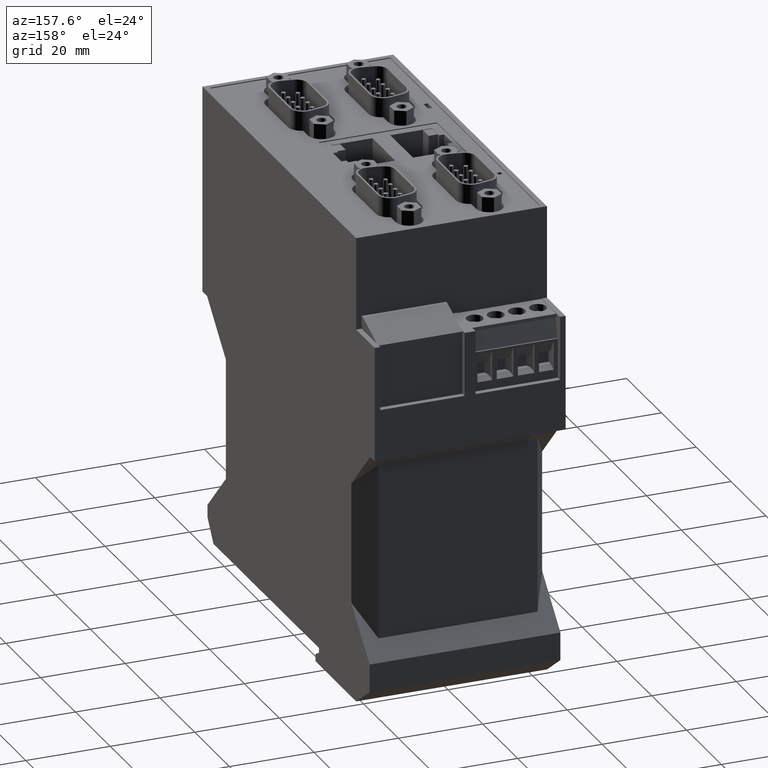
[diagram: clean part render]
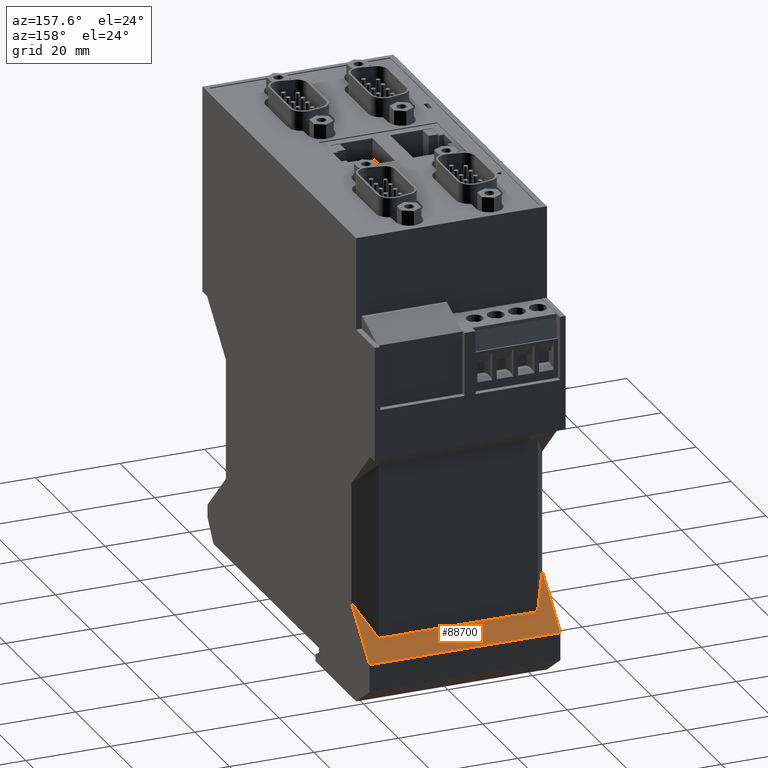
[diagram: same view with one face highlighted and labeled with its STEP entity id]
A machine part, auxiliary view. The second image highlights one B-rep face of the part: STEP entity #88700.
In plain terms, the highlighted planar face has unit normal (-0, -0.7071, -0.7071).
Its self-contained STEP definition (entity closure, byte-faithful):
#600=CARTESIAN_POINT('',(29.0500000000947,7.99999999999599,-11.3));
#610=VERTEX_POINT('',#600);
#640=CARTESIAN_POINT('',(24.,13.0500000000897,-11.3));
#650=DIRECTION('',(-0.707106781186613,0.707106781186482,0.));
#660=VECTOR('',#650,1.);
#670=LINE('',#640,#660);
#680=CARTESIAN_POINT('',(18.55000000009,18.4999999999987,-11.3));
#690=VERTEX_POINT('',#680);
#700=EDGE_CURVE('',#610,#690,#670,.T.);
#71020=CARTESIAN_POINT('',(25.0500000000942,11.9999999999957,
30.1472232502123));
#71030=VERTEX_POINT('',#71020);
#71060=CARTESIAN_POINT('',(24.,13.0500000000897,30.7534410329158));
#71070=DIRECTION('',(-0.65465367070803,0.654653670707909,
0.377964473009255));
#71080=VECTOR('',#71070,1.);
#71090=LINE('',#71060,#71080);
#71100=CARTESIAN_POINT('',(18.5499999999986,18.5000000000902,33.9));
#71110=VERTEX_POINT('',#71100);
#71120=EDGE_CURVE('',#71030,#71110,#71090,.T.);
#73880=CARTESIAN_POINT('',(24.,13.0500000000897,33.9));
#73890=DIRECTION('',(-0.707106781186613,0.707106781186482,0.));
#73900=VECTOR('',#73890,1.);
#73910=LINE('',#73880,#73900);
#73920=CARTESIAN_POINT('',(29.0500000000947,7.99999999999599,33.9));
#73930=VERTEX_POINT('',#73920);
#73940=EDGE_CURVE('',#73930,#71110,#73910,.T.);
#86190=CARTESIAN_POINT('',(25.0500000000874,12.0000000000026,
-7.54722325026897));
#86200=VERTEX_POINT('',#86190);
#86230=CARTESIAN_POINT('',(25.0500000000857,12.0000000000043,-11.3));
#86240=DIRECTION('',(-4.52800000000003E-13,4.52799999999919E-13,-1.));
#86250=VECTOR('',#86240,1.);
#86260=LINE('',#86230,#86250);
#86270=EDGE_CURVE('',#71030,#86200,#86260,.T.);
#86460=CARTESIAN_POINT('',(24.,13.0500000000897,-8.15344103296852));
#86470=DIRECTION('',(-0.654653670708029,0.654653670707908,
-0.377964473009258));
#86480=VECTOR('',#86470,1.);
#86490=LINE('',#86460,#86480);
#86500=EDGE_CURVE('',#86200,#690,#86490,.T.);
#88410=CARTESIAN_POINT('',(29.0500000000947,7.99999999999599,-11.3));
#88420=DIRECTION('',(0.,0.,1.));
#88430=VECTOR('',#88420,1.);
#88440=LINE('',#88410,#88430);
#88450=EDGE_CURVE('',#610,#73930,#88440,.T.);
#88570=CARTESIAN_POINT('',(13.7750000000867,23.2750000000012,0.));
#88580=DIRECTION('',(-0.707106781186482,-0.707106781186613,-0.));
#88590=DIRECTION('',(-0.707106781186613,0.707106781186482,0.));
#88600=AXIS2_PLACEMENT_3D('',#88570,#88580,#88590);
#88610=PLANE('',#88600);
#88620=ORIENTED_EDGE('',*,*,#86500,.F.);
#88630=ORIENTED_EDGE('',*,*,#700,.T.);
#88640=ORIENTED_EDGE('',*,*,#88450,.F.);
#88650=ORIENTED_EDGE('',*,*,#73940,.F.);
#88660=ORIENTED_EDGE('',*,*,#71120,.T.);
#88670=ORIENTED_EDGE('',*,*,#86270,.F.);
#88680=EDGE_LOOP('',(#88670,#88660,#88650,#88640,#88630,#88620));
#88690=FACE_OUTER_BOUND('',#88680,.T.);
#88700=ADVANCED_FACE('',(#88690),#88610,.F.);